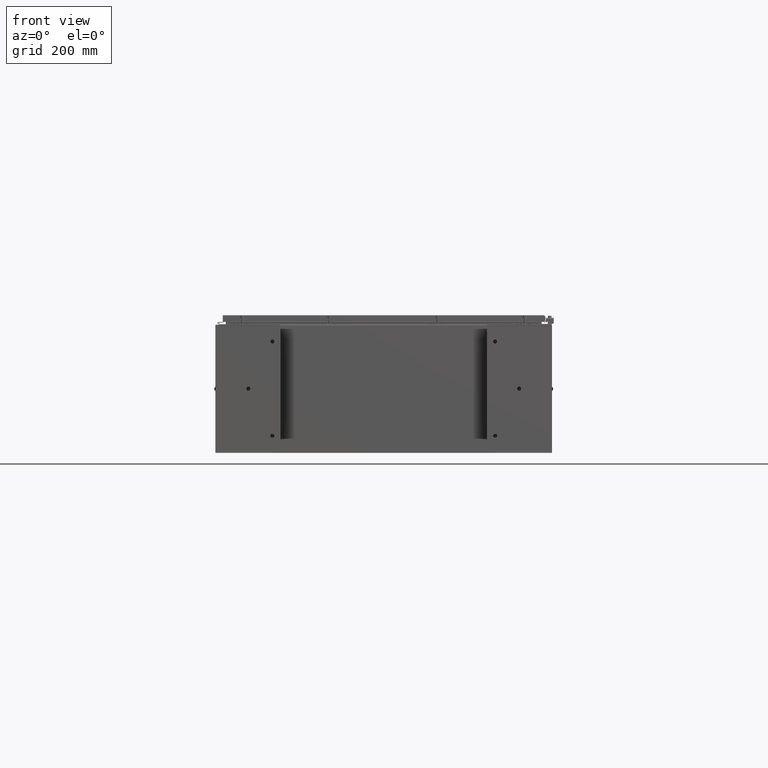
[diagram: clean part render]
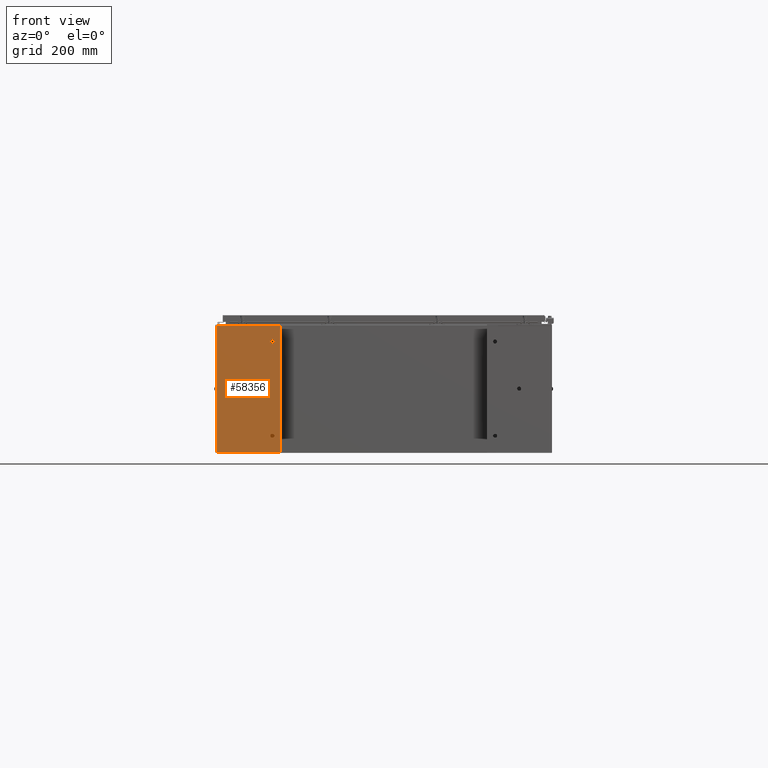
[diagram: same view with one face highlighted and labeled with its STEP entity id]
A machine part, front view. The second image highlights one B-rep face of the part: STEP entity #58356.
In plain terms, the highlighted planar face has unit normal (-0, -1, -0).
Its self-contained STEP definition (entity closure, byte-faithful):
#1103 = CARTESIAN_POINT ( 'NONE',  ( 7.879000000000000400, 4.000000000000000000, -0.1050000000000000000 ) ) ;
#2307 = EDGE_LOOP ( 'NONE', ( #19147, #50785, #66926, #48025 ) ) ;
#2901 = ORIENTED_EDGE ( 'NONE', *, *, #41460, .T. ) ;
#3016 = VERTEX_POINT ( 'NONE', #24717 ) ;
#3429 = EDGE_CURVE ( 'NONE', #3016, #48390, #46896, .T. ) ;
#5766 = CARTESIAN_POINT ( 'NONE',  ( -5.878999999999999600, -2.999999999999999600, -0.1050000000000000000 ) ) ;
#6182 = LINE ( 'NONE', #41110, #30844 ) ;
#6442 = DIRECTION ( 'NONE',  ( -1.000000000000000000, 0.0000000000000000000, -0.0000000000000000000 ) ) ;
#7027 = VERTEX_POINT ( 'NONE', #28157 ) ;
#7121 = VERTEX_POINT ( 'NONE', #51129 ) ;
#7947 = CARTESIAN_POINT ( 'NONE',  ( -5.878999999999999600, -2.999999999999999600, -0.1050000000000000000 ) ) ;
#9038 = FACE_BOUND ( 'NONE', #18792, .T. ) ;
#9119 = DIRECTION ( 'NONE',  ( 0.0000000000000000000, 0.0000000000000000000, -1.000000000000000000 ) ) ;
#9453 = DIRECTION ( 'NONE',  ( -1.000000000000000000, -0.0000000000000000000, -0.0000000000000000000 ) ) ;
#9737 = LINE ( 'NONE', #51389, #49959 ) ;
#10900 = VECTOR ( 'NONE', #61894, 39.37007874015748100 ) ;
#11090 = DIRECTION ( 'NONE',  ( -1.000000000000000000, 0.0000000000000000000, 0.0000000000000000000 ) ) ;
#13302 = DIRECTION ( 'NONE',  ( -1.000000000000000000, 0.0000000000000000000, 0.0000000000000000000 ) ) ;
#16716 = VERTEX_POINT ( 'NONE', #25604 ) ;
#17438 = CARTESIAN_POINT ( 'NONE',  ( 5.878999999999999600, -2.999999999999999600, -0.1050000000000000000 ) ) ;
#18230 = CIRCLE ( 'NONE', #18882, 0.2499999999999998100 ) ;
#18674 = AXIS2_PLACEMENT_3D ( 'NONE', #1103, #53218, #6442 ) ;
#18744 = CIRCLE ( 'NONE', #59063, 0.2500000000000000000 ) ;
#18792 = EDGE_LOOP ( 'NONE', ( #32158, #24843 ) ) ;
#18882 = AXIS2_PLACEMENT_3D ( 'NONE', #40686, #9119, #45857 ) ;
#19147 = ORIENTED_EDGE ( 'NONE', *, *, #53051, .F. ) ;
#19573 = ORIENTED_EDGE ( 'NONE', *, *, #34048, .T. ) ;
#19797 = FACE_BOUND ( 'NONE', #21237, .T. ) ;
#21237 = EDGE_LOOP ( 'NONE', ( #19573, #2901 ) ) ;
#22700 = DIRECTION ( 'NONE',  ( -1.000000000000000000, 0.0000000000000000000, 0.0000000000000000000 ) ) ;
#23766 = LINE ( 'NONE', #27641, #63795 ) ;
#24202 = VERTEX_POINT ( 'NONE', #48290 ) ;
#24717 = CARTESIAN_POINT ( 'NONE',  ( -0.2500000000000000000, 3.061616997868383000E-017, -0.1050000000000000000 ) ) ;
#24843 = ORIENTED_EDGE ( 'NONE', *, *, #3429, .T. ) ;
#25604 = CARTESIAN_POINT ( 'NONE',  ( 7.879000000000000400, 4.000000000000000000, -0.1050000000000000000 ) ) ;
#26486 = ORIENTED_EDGE ( 'NONE', *, *, #43369, .F. ) ;
#27424 = EDGE_CURVE ( 'NONE', #62940, #24202, #57692, .T. ) ;
#27641 = CARTESIAN_POINT ( 'NONE',  ( 7.879000000000000400, -4.000000000000000000, -0.1050000000000000000 ) ) ;
#27774 = VERTEX_POINT ( 'NONE', #36153 ) ;
#28157 = CARTESIAN_POINT ( 'NONE',  ( -7.878999999999998700, 4.000000000000000000, -0.1050000000000000000 ) ) ;
#29345 = CARTESIAN_POINT ( 'NONE',  ( 0.0000000000000000000, 0.0000000000000000000, -0.1050000000000000000 ) ) ;
#29752 = CIRCLE ( 'NONE', #45979, 0.2499999999999998100 ) ;
#30286 = AXIS2_PLACEMENT_3D ( 'NONE', #17438, #53959, #22700 ) ;
#30624 = CARTESIAN_POINT ( 'NONE',  ( -7.878999999999998700, -4.000000000000000000, -0.1050000000000000000 ) ) ;
#30844 = VECTOR ( 'NONE', #56879, 39.37007874015748100 ) ;
#31503 = AXIS2_PLACEMENT_3D ( 'NONE', #7947, #44758, #13302 ) ;
#31672 = CARTESIAN_POINT ( 'NONE',  ( 0.2500000000000000000, 0.0000000000000000000, -0.1050000000000000000 ) ) ;
#32158 = ORIENTED_EDGE ( 'NONE', *, *, #52149, .T. ) ;
#32648 = PLANE ( 'NONE',  #18674 ) ;
#32746 = VERTEX_POINT ( 'NONE', #44791 ) ;
#33709 = FACE_OUTER_BOUND ( 'NONE', #2307, .T. ) ;
#34048 = EDGE_CURVE ( 'NONE', #32746, #38368, #29752, .T. ) ;
#34398 = ORIENTED_EDGE ( 'NONE', *, *, #27424, .F. ) ;
#34655 = DIRECTION ( 'NONE',  ( -1.000000000000000000, 0.0000000000000000000, 0.0000000000000000000 ) ) ;
#36153 = CARTESIAN_POINT ( 'NONE',  ( 7.879000000000000400, -4.000000000000000000, -0.1050000000000000000 ) ) ;
#36712 = DIRECTION ( 'NONE',  ( -1.000000000000000000, 0.0000000000000000000, 0.0000000000000000000 ) ) ;
#36863 = DIRECTION ( 'NONE',  ( -0.0000000000000000000, -0.0000000000000000000, 1.000000000000000000 ) ) ;
#36949 = CARTESIAN_POINT ( 'NONE',  ( 0.0000000000000000000, 0.0000000000000000000, -0.1050000000000000000 ) ) ;
#38368 = VERTEX_POINT ( 'NONE', #52132 ) ;
#40686 = CARTESIAN_POINT ( 'NONE',  ( 5.878999999999999600, -2.999999999999999600, -0.1050000000000000000 ) ) ;
#41110 = CARTESIAN_POINT ( 'NONE',  ( -7.878999999999998700, -4.000000000000000000, -0.1050000000000000000 ) ) ;
#41460 = EDGE_CURVE ( 'NONE', #38368, #32746, #47140, .T. ) ;
#42196 = EDGE_CURVE ( 'NONE', #7027, #7121, #61654, .T. ) ;
#42659 = DIRECTION ( 'NONE',  ( -0.0000000000000000000, -0.0000000000000000000, 1.000000000000000000 ) ) ;
#43369 = EDGE_CURVE ( 'NONE', #24202, #62940, #18230, .T. ) ;
#44757 = EDGE_LOOP ( 'NONE', ( #26486, #34398 ) ) ;
#44758 = DIRECTION ( 'NONE',  ( -0.0000000000000000000, -0.0000000000000000000, 1.000000000000000000 ) ) ;
#44791 = CARTESIAN_POINT ( 'NONE',  ( -5.628999999999999600, -2.999999999999999600, -0.1050000000000000000 ) ) ;
#45857 = DIRECTION ( 'NONE',  ( -1.000000000000000000, 0.0000000000000000000, 0.0000000000000000000 ) ) ;
#45979 = AXIS2_PLACEMENT_3D ( 'NONE', #5766, #42659, #11090 ) ;
#46896 = CIRCLE ( 'NONE', #53976, 0.2500000000000000000 ) ;
#47140 = CIRCLE ( 'NONE', #31503, 0.2499999999999998100 ) ;
#47641 = FACE_BOUND ( 'NONE', #44757, .T. ) ;
#48025 = ORIENTED_EDGE ( 'NONE', *, *, #60897, .F. ) ;
#48290 = CARTESIAN_POINT ( 'NONE',  ( 6.128999999999998700, -2.999999999999999600, -0.1050000000000000000 ) ) ;
#48390 = VERTEX_POINT ( 'NONE', #31672 ) ;
#49959 = VECTOR ( 'NONE', #9453, 39.37007874015748100 ) ;
#50785 = ORIENTED_EDGE ( 'NONE', *, *, #67172, .F. ) ;
#51129 = CARTESIAN_POINT ( 'NONE',  ( -7.878999999999998700, -4.000000000000000000, -0.1050000000000000000 ) ) ;
#51389 = CARTESIAN_POINT ( 'NONE',  ( -7.878999999999998700, 4.000000000000000000, -0.1050000000000000000 ) ) ;
#52132 = CARTESIAN_POINT ( 'NONE',  ( -6.128999999999998700, -2.999999999999999600, -0.1050000000000000000 ) ) ;
#52149 = EDGE_CURVE ( 'NONE', #48390, #3016, #18744, .T. ) ;
#53051 = EDGE_CURVE ( 'NONE', #27774, #16716, #23766, .T. ) ;
#53218 = DIRECTION ( 'NONE',  ( 0.0000000000000000000, 0.0000000000000000000, -1.000000000000000000 ) ) ;
#53959 = DIRECTION ( 'NONE',  ( 0.0000000000000000000, 0.0000000000000000000, -1.000000000000000000 ) ) ;
#53976 = AXIS2_PLACEMENT_3D ( 'NONE', #36949, #36863, #36712 ) ;
#56879 = DIRECTION ( 'NONE',  ( 1.000000000000000000, 0.0000000000000000000, 0.0000000000000000000 ) ) ;
#57692 = CIRCLE ( 'NONE', #30286, 0.2499999999999998100 ) ;
#58052 = CARTESIAN_POINT ( 'NONE',  ( 5.628999999999999600, -2.999999999999999600, -0.1050000000000000000 ) ) ;
#58356 = ADVANCED_FACE ( 'NONE', ( #33709, #9038, #19797, #47641 ), #32648, .T. ) ;
#58857 = DIRECTION ( 'NONE',  ( 0.0000000000000000000, 1.000000000000000000, 0.0000000000000000000 ) ) ;
#59063 = AXIS2_PLACEMENT_3D ( 'NONE', #29345, #65873, #34655 ) ;
#60897 = EDGE_CURVE ( 'NONE', #16716, #7027, #9737, .T. ) ;
#61654 = LINE ( 'NONE', #30624, #10900 ) ;
#61894 = DIRECTION ( 'NONE',  ( -0.0000000000000000000, -1.000000000000000000, -0.0000000000000000000 ) ) ;
#62940 = VERTEX_POINT ( 'NONE', #58052 ) ;
#63795 = VECTOR ( 'NONE', #58857, 39.37007874015748100 ) ;
#65873 = DIRECTION ( 'NONE',  ( -0.0000000000000000000, -0.0000000000000000000, 1.000000000000000000 ) ) ;
#66926 = ORIENTED_EDGE ( 'NONE', *, *, #42196, .F. ) ;
#67172 = EDGE_CURVE ( 'NONE', #7121, #27774, #6182, .T. ) ;